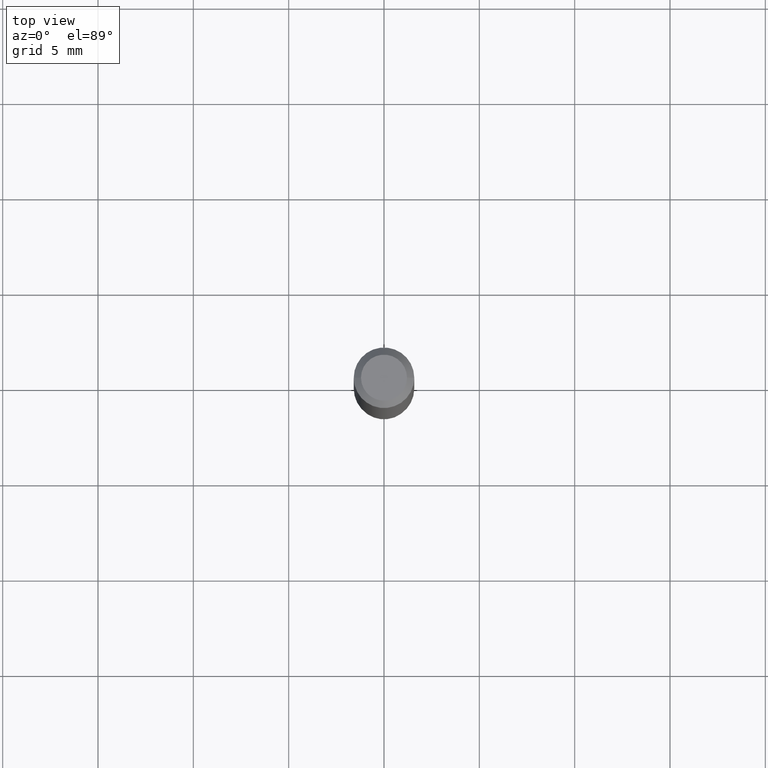
[diagram: clean part render]
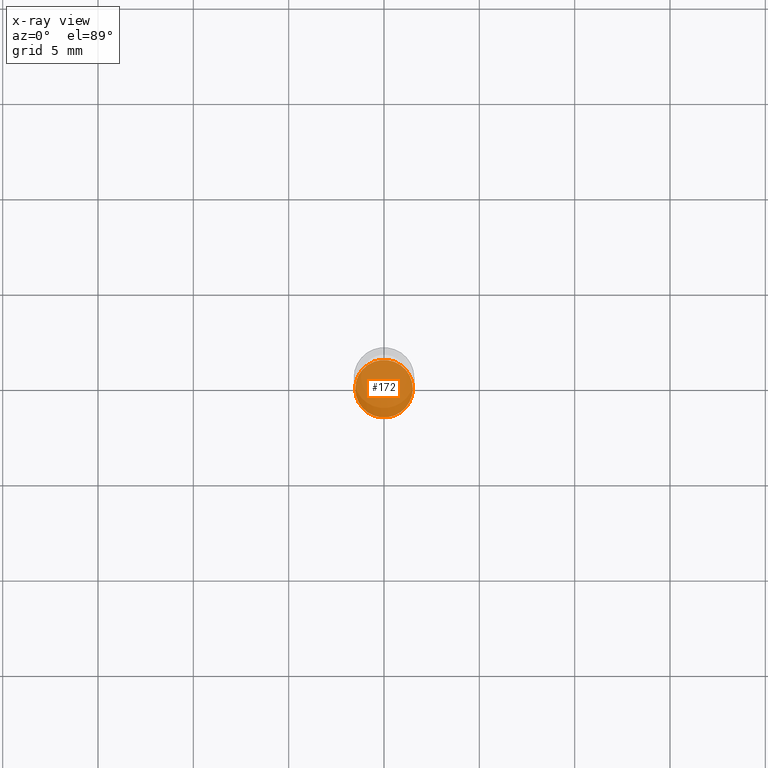
[diagram: x-ray — body ghosted, one internal face saturated and labeled with its STEP entity id]
A machine part, top view, then the same camera in x-ray: the body is ghosted and one INTERNAL B-rep face — a face not visible from any outside direction — is saturated and labeled: STEP entity #172.
In plain terms, the highlighted planar face has unit normal (-0, 0, 1).
Its self-contained STEP definition (entity closure, byte-faithful):
#3 = ORIENTED_EDGE ( 'NONE', *, *, #418, .F. ) ;
#12 = DIRECTION ( 'NONE',  ( 1.000000000000000000, -6.982962677686265922E-15, 4.876176775795935793E-29 ) ) ;
#18 = AXIS2_PLACEMENT_3D ( 'NONE', #459, #342, #148 ) ;
#33 = CARTESIAN_POINT ( 'NONE',  ( -0.05949999999999997652, -4.183333212321581645E-15, -1.320000000000000062 ) ) ;
#45 = CIRCLE ( 'NONE', #18, 0.05949999999999997652 ) ;
#47 = ORIENTED_EDGE ( 'NONE', *, *, #405, .F. ) ;
#74 = CIRCLE ( 'NONE', #515, 0.05949999999999997652 ) ;
#99 = DIRECTION ( 'NONE',  ( -2.438088387897960049E-29, 3.491481338843145188E-15, 1.000000000000000000 ) ) ;
#114 = DIRECTION ( 'NONE',  ( -2.445468806185136597E-29, 3.491481338843145583E-15, 1.000000000000000000 ) ) ;
#148 = DIRECTION ( 'NONE',  ( 1.000000000000000000, -6.982962677686261977E-15, 0.000000000000000000 ) ) ;
#164 = AXIS2_PLACEMENT_3D ( 'NONE', #447, #99, #12 ) ;
#172 = ADVANCED_FACE ( 'NONE', ( #328 ), #299, .F. ) ;
#191 = VERTEX_POINT ( 'NONE', #491 ) ;
#268 = DIRECTION ( 'NONE',  ( 1.000000000000000000, -6.982962677686261977E-15, 0.000000000000000000 ) ) ;
#299 = PLANE ( 'NONE',  #164 ) ;
#328 = FACE_OUTER_BOUND ( 'NONE', #335, .T. ) ;
#335 = EDGE_LOOP ( 'NONE', ( #3, #47 ) ) ;
#342 = DIRECTION ( 'NONE',  ( -2.445468806185136597E-29, 3.491481338843145583E-15, 1.000000000000000000 ) ) ;
#405 = EDGE_CURVE ( 'NONE', #514, #191, #45, .T. ) ;
#418 = EDGE_CURVE ( 'NONE', #191, #514, #74, .T. ) ;
#420 = CARTESIAN_POINT ( 'NONE',  ( 3.228018824164380442E-29, -4.608755367272952437E-15, -1.320000000000000062 ) ) ;
#447 = CARTESIAN_POINT ( 'NONE',  ( 3.228018824164380442E-29, -4.608755367272952437E-15, -1.320000000000000062 ) ) ;
#459 = CARTESIAN_POINT ( 'NONE',  ( 3.228018824164380442E-29, -4.608755367272952437E-15, -1.320000000000000062 ) ) ;
#491 = CARTESIAN_POINT ( 'NONE',  ( 0.05949999999999997652, -5.024241646595285275E-15, -1.320000000000000062 ) ) ;
#514 = VERTEX_POINT ( 'NONE', #33 ) ;
#515 = AXIS2_PLACEMENT_3D ( 'NONE', #420, #114, #268 ) ;